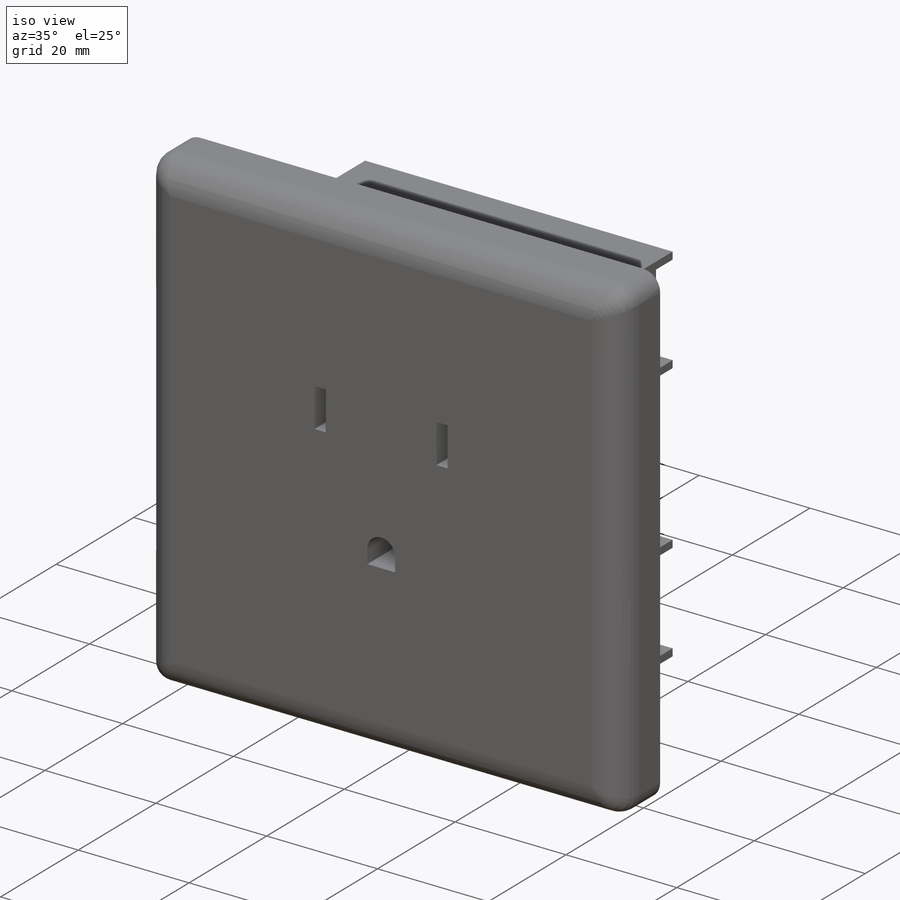
[diagram: iso view]
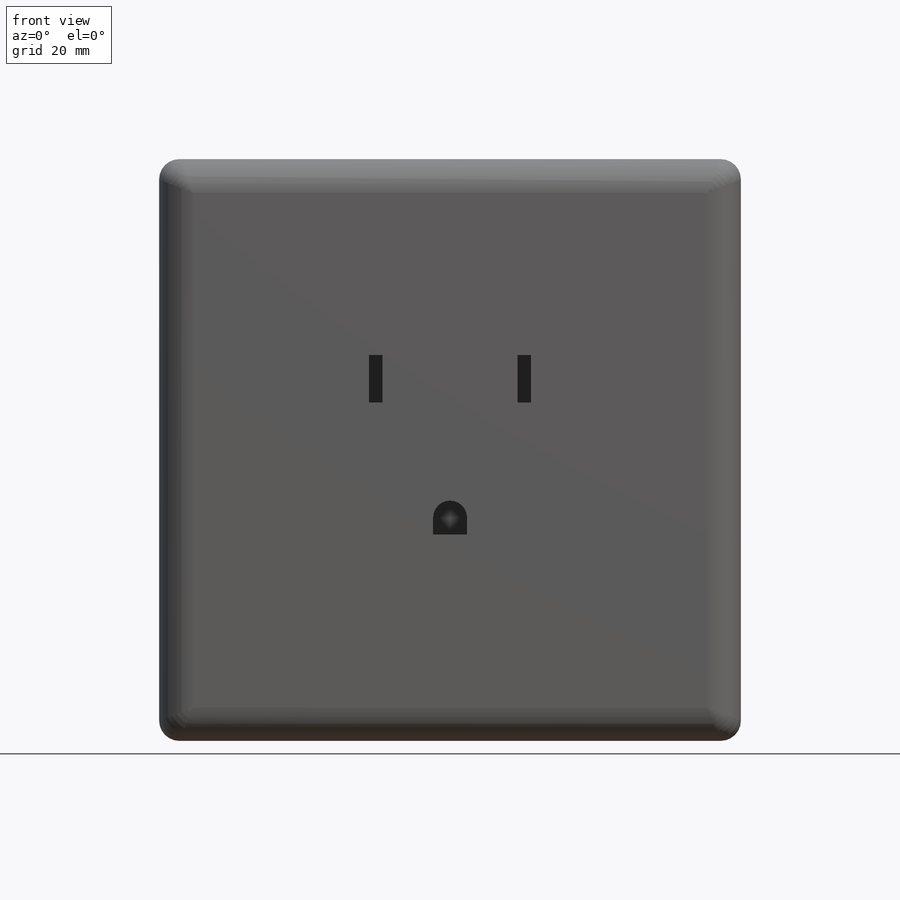
[diagram: front view]
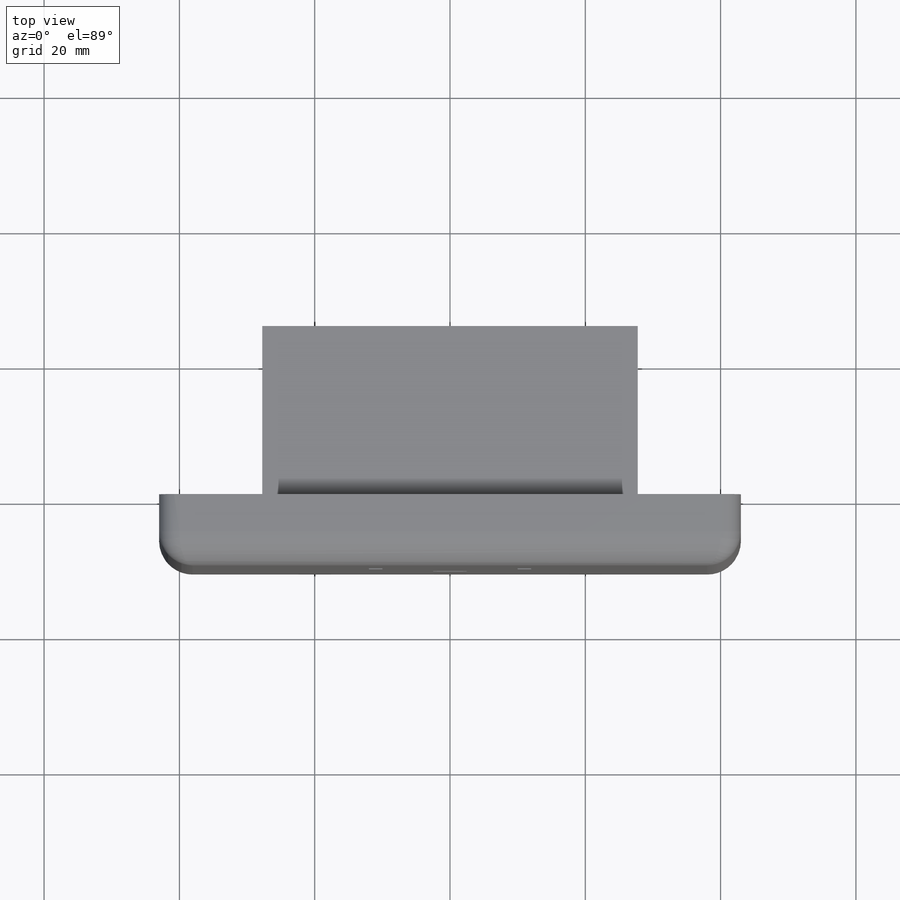
[diagram: top view]
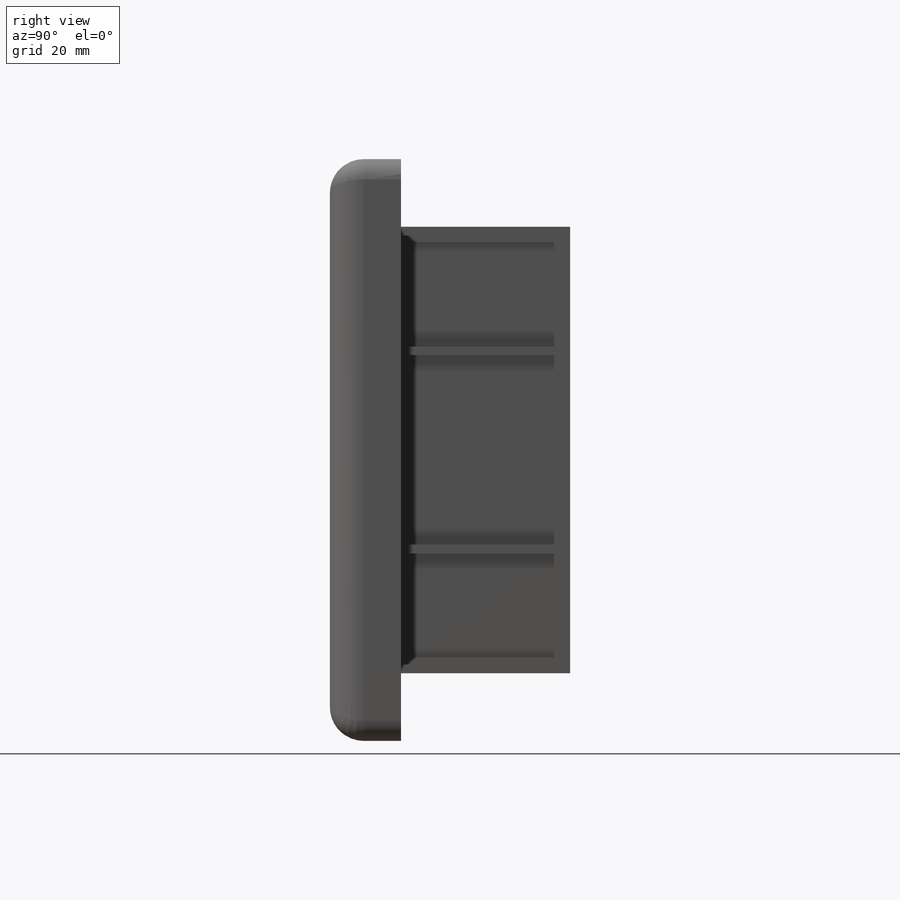
[diagram: right view]
SOLIDWORKS PART (.sldprt)
format: sldprt  version: not decoded by parser v0  size: 325,632 bytes
history: native  units: mm
features: sketch x8, cut_extrude x5, extrude x3, mirror x3, fillet x2, material x1 (+12 scaffold rows collapsed)
feature tree (34):
  scaffold x12  (default folders/planes/origin — collapsed)
  material  "Material <not specified>"
  sketch  "Sketch1"  dims[D1=86.0mm D2=86.0mm]
  extrude  "Boss-Extrude1"  Depth=10.5mm
  sketch  "Sketch2"  dims[c1.D2=~4.431877mm c1.D3=4.0mm c1.D4=4.0mm c1.D1=30.0mm c2.D2=30.0mm]
  cut_extrude  "Cut-Extrude1"  Depth=5mm
  sketch  "Sketch3"  dims[D3=3.8mm D4=3.8mm D5=3.8mm D6=3.8mm D1=70.0mm D2=70.0mm]
  cut_extrude  "Cut-Extrude2"  Depth=5mm
  sketch  "Sketch4"  dims[D1=66.0mm D2=49.5mm]
  extrude  "Boss-Extrude2"  Depth=25mm
  sketch  "Sketch5"  dims[D1=3.0mm D2=4.0mm D3=4.0mm D4=4.0mm D5=19.0mm D6=19.0mm]
  extrude  "Boss-Extrude3"  Depth=25mm
  sketch  "Sketch6"  dims[D1=1.3mm D2=1.3mm]
  cut_extrude  "Cut-Extrude3"  Depth=25mm
  mirror  "Mirror1"
  mirror  "Mirror2"
  sketch  "Sketch7"  dims[D1=2.0mm D2=7.0mm D3=10.0mm D4=7.0mm]
  cut_extrude  "Cut-Extrude4"  Depth=10mm
  mirror  "Mirror3"
  sketch  "Sketch8"  dims[D1=5.0mm D2=10.0mm]
  cut_extrude  "Cut-Extrude5"  Depth=10mm
  fillet  "Fillet1"  Radius=3mm
  fillet  "Fillet3"  Radius=5mm
decode coverage: 18 of 21 modeling features carry decoded parameters
note: ~ marks probable driven/reference dimensions
note: suppression state not decoded; provenance and decode notes live in map.json
